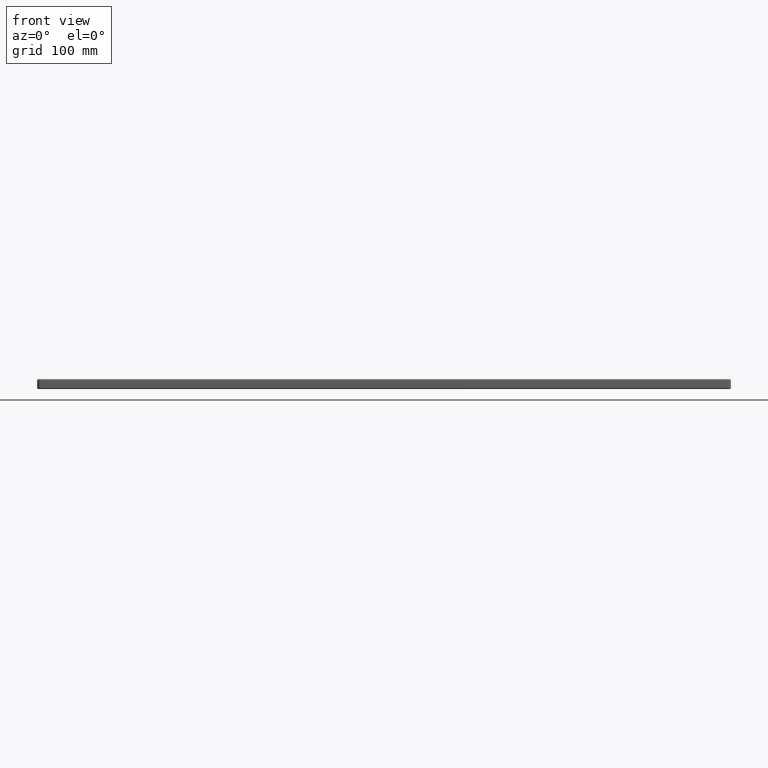
[diagram: clean part render]
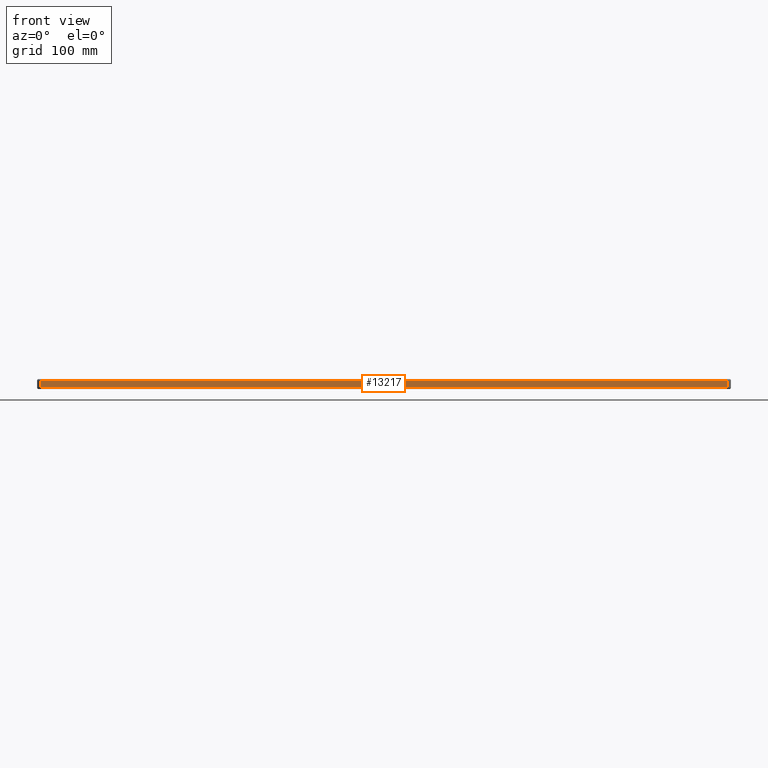
[diagram: same view with one face highlighted and labeled with its STEP entity id]
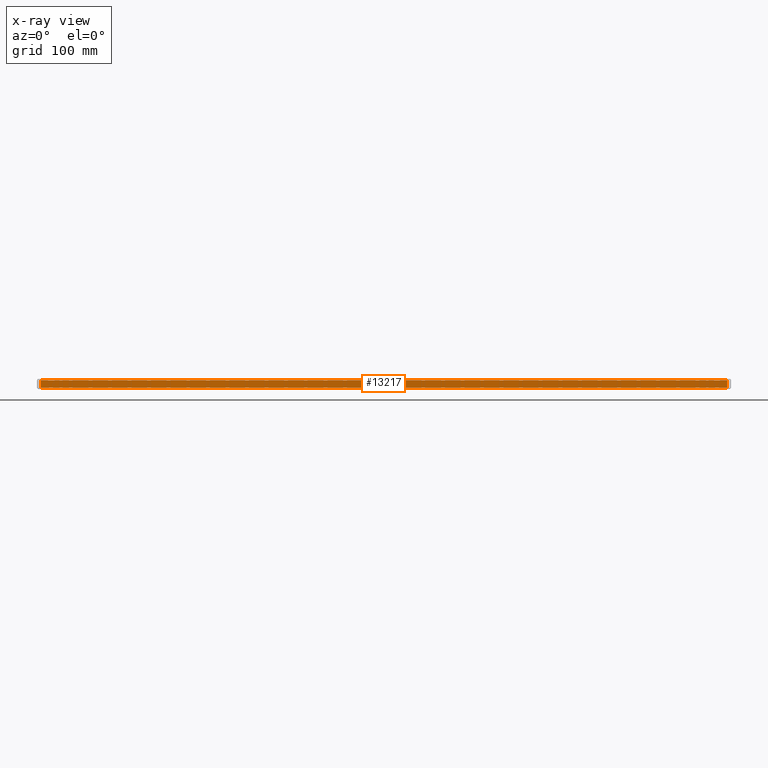
[diagram: x-ray of the same camera — body ghosted, the highlighted face saturated]
A machine part, front view. The second image highlights one B-rep face of the part: STEP entity #13217.
The next image is the same camera in x-ray: the body ghosted, the highlighted face saturated — about 0% of this face is hidden behind the body in this view.
In plain terms, the highlighted planar face has unit normal (0, -1, 0).
Its self-contained STEP definition (entity closure, byte-faithful):
#973 = ORIENTED_EDGE ( 'NONE', *, *, #7678, .T. ) ;
#1548 = LINE ( 'NONE', #27794, #19356 ) ;
#4370 = CARTESIAN_POINT ( 'NONE',  ( 0.0000000000000000000, 0.0000000000000000000, -13.00000000000000000 ) ) ;
#4601 = VECTOR ( 'NONE', #21688, 1000.000000000000000 ) ;
#4714 = EDGE_CURVE ( 'NONE', #25751, #22612, #12419, .T. ) ;
#5331 = CARTESIAN_POINT ( 'NONE',  ( 4.999999999999999100, 0.0000000000000000000, -13.00000000000000000 ) ) ;
#7217 = VECTOR ( 'NONE', #12057, 1000.000000000000000 ) ;
#7269 = ORIENTED_EDGE ( 'NONE', *, *, #29650, .T. ) ;
#7678 = EDGE_CURVE ( 'NONE', #16694, #29125, #17720, .T. ) ;
#8691 = CARTESIAN_POINT ( 'NONE',  ( 0.0000000000000000000, 0.0000000000000000000, -11.00000000000000000 ) ) ;
#8885 = DIRECTION ( 'NONE',  ( -0.0000000000000000000, 0.0000000000000000000, 1.000000000000000000 ) ) ;
#10729 = LINE ( 'NONE', #5331, #4601 ) ;
#11843 = CARTESIAN_POINT ( 'NONE',  ( 4.999999999999999100, 0.0000000000000000000, -2.000000000000000000 ) ) ;
#12057 = DIRECTION ( 'NONE',  ( -1.000000000000000000, -0.0000000000000000000, 0.0000000000000000000 ) ) ;
#12419 = LINE ( 'NONE', #8691, #14233 ) ;
#13217 = ADVANCED_FACE ( 'NONE', ( #23986 ), #25385, .T. ) ;
#13282 = CARTESIAN_POINT ( 'NONE',  ( 895.0000000000000000, 0.0000000000000000000, -11.00000000000000000 ) ) ;
#14008 = DIRECTION ( 'NONE',  ( 0.0000000000000000000, -0.0000000000000000000, -1.000000000000000000 ) ) ;
#14233 = VECTOR ( 'NONE', #17936, 1000.000000000000000 ) ;
#15195 = EDGE_LOOP ( 'NONE', ( #15735, #17567, #7269, #973 ) ) ;
#15735 = ORIENTED_EDGE ( 'NONE', *, *, #23443, .T. ) ;
#16694 = VERTEX_POINT ( 'NONE', #17245 ) ;
#17245 = CARTESIAN_POINT ( 'NONE',  ( 895.0000000000000000, 0.0000000000000000000, -2.000000000000000000 ) ) ;
#17567 = ORIENTED_EDGE ( 'NONE', *, *, #4714, .T. ) ;
#17720 = LINE ( 'NONE', #23965, #7217 ) ;
#17936 = DIRECTION ( 'NONE',  ( 1.000000000000000000, 0.0000000000000000000, 0.0000000000000000000 ) ) ;
#18374 = DIRECTION ( 'NONE',  ( 0.0000000000000000000, -1.000000000000000000, 0.0000000000000000000 ) ) ;
#19356 = VECTOR ( 'NONE', #8885, 1000.000000000000000 ) ;
#21491 = CARTESIAN_POINT ( 'NONE',  ( 4.999999999999999100, 0.0000000000000000000, -11.00000000000000000 ) ) ;
#21688 = DIRECTION ( 'NONE',  ( -0.0000000000000000000, -0.0000000000000000000, -1.000000000000000000 ) ) ;
#22612 = VERTEX_POINT ( 'NONE', #13282 ) ;
#23443 = EDGE_CURVE ( 'NONE', #29125, #25751, #10729, .T. ) ;
#23965 = CARTESIAN_POINT ( 'NONE',  ( 4.999999999999999100, 0.0000000000000000000, -2.000000000000000000 ) ) ;
#23986 = FACE_OUTER_BOUND ( 'NONE', #15195, .T. ) ;
#24981 = AXIS2_PLACEMENT_3D ( 'NONE', #4370, #18374, #14008 ) ;
#25385 = PLANE ( 'NONE',  #24981 ) ;
#25751 = VERTEX_POINT ( 'NONE', #21491 ) ;
#27794 = CARTESIAN_POINT ( 'NONE',  ( 895.0000000000000000, 0.0000000000000000000, -13.00000000000000000 ) ) ;
#29125 = VERTEX_POINT ( 'NONE', #11843 ) ;
#29650 = EDGE_CURVE ( 'NONE', #22612, #16694, #1548, .T. ) ;